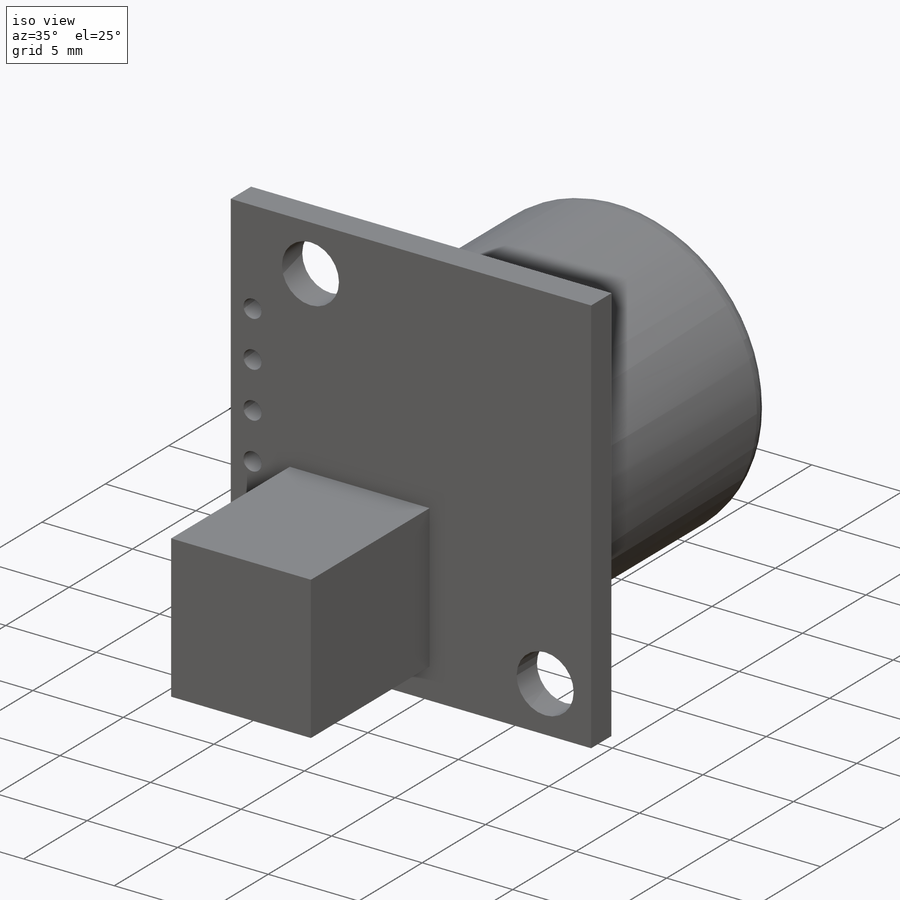
[diagram: iso view]
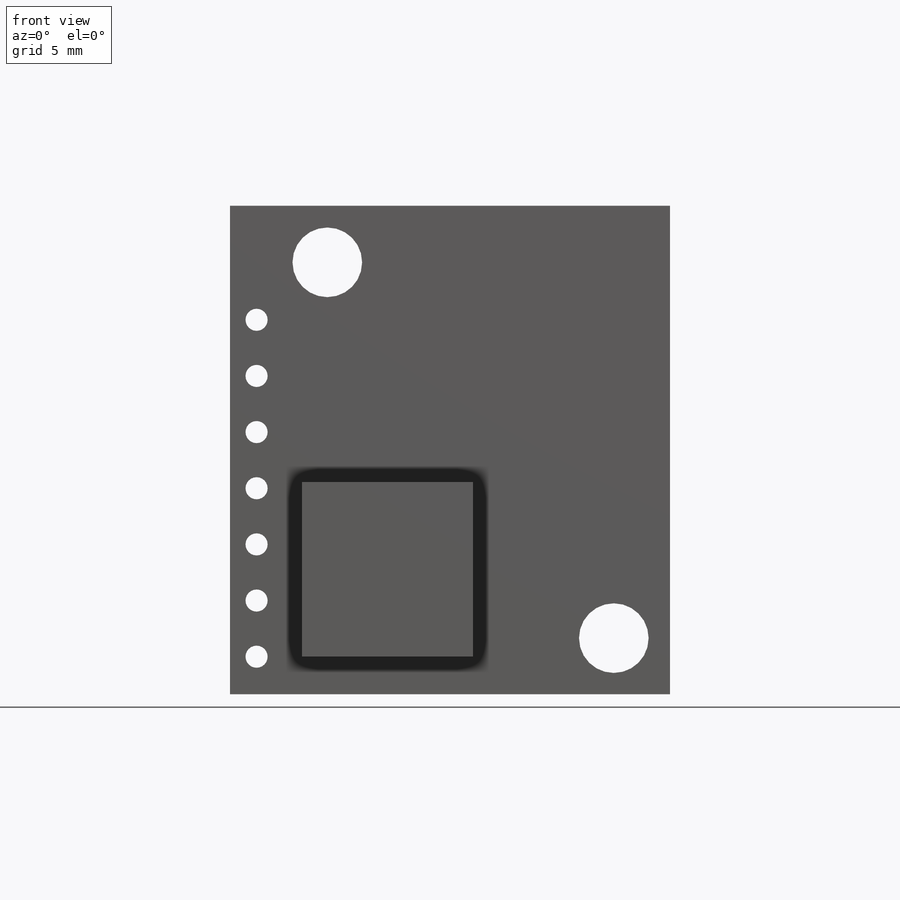
[diagram: front view]
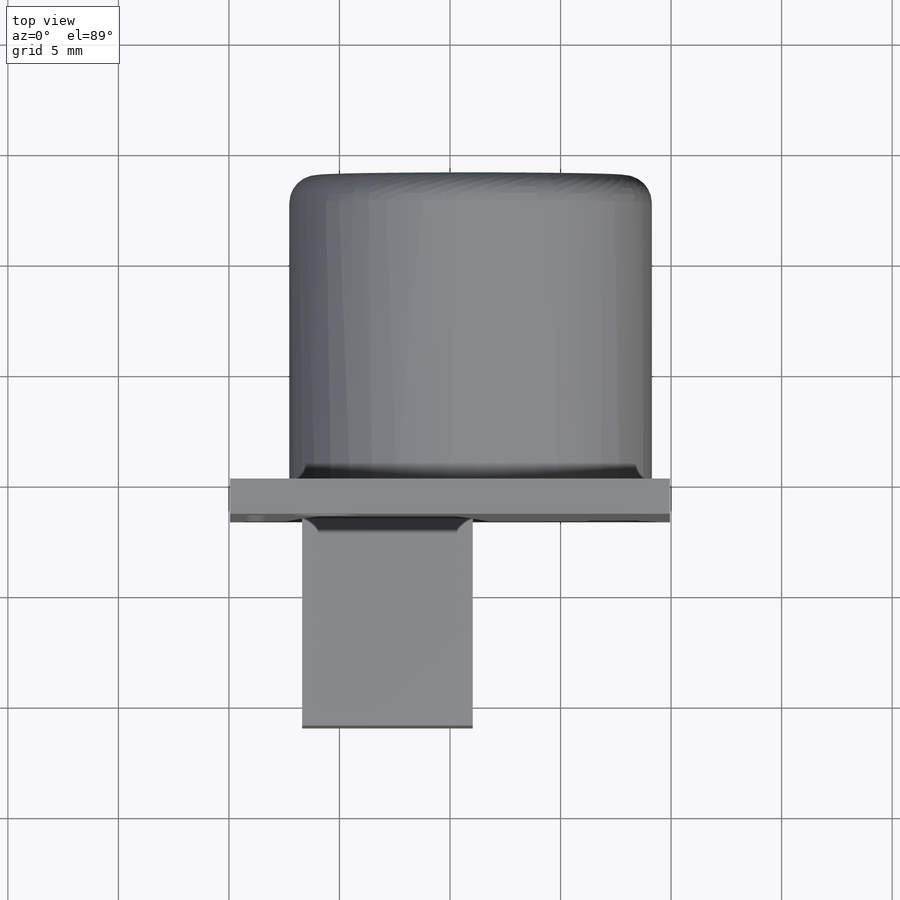
[diagram: top view]
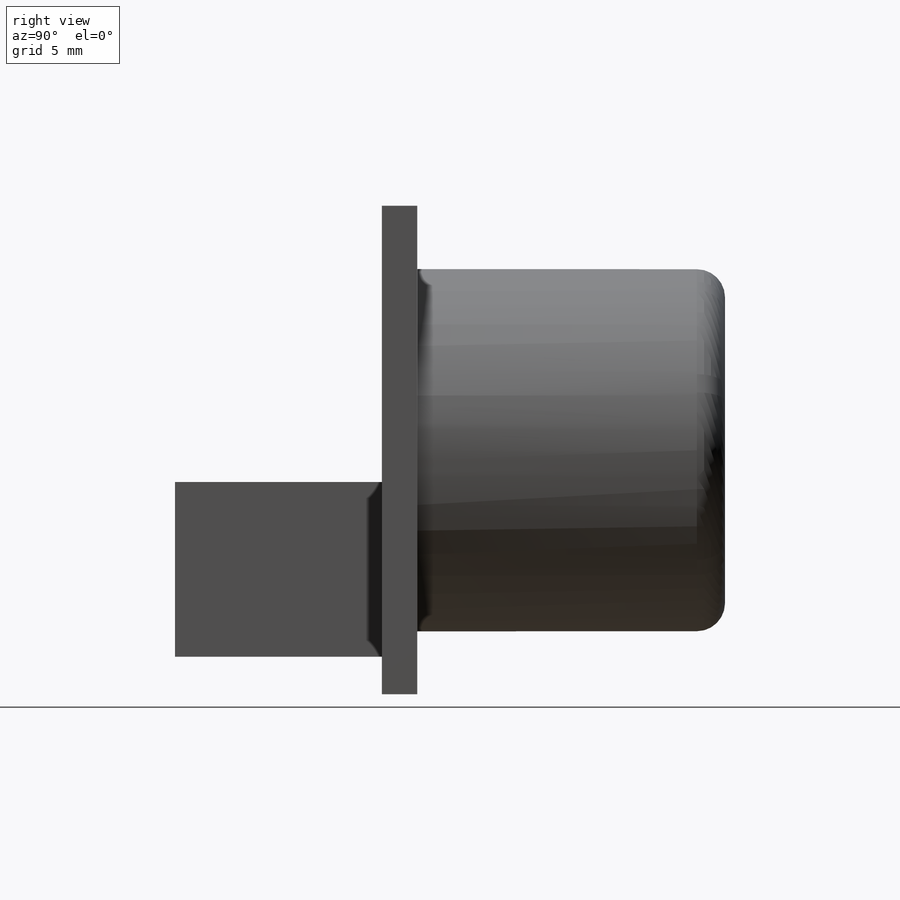
[diagram: right view]
SOLIDWORKS PART (.sldprt)
format: sldprt  version: not decoded by parser v0  size: 225,792 bytes
history: native  units: mm
features: sketch x3, extrude x3, material x1, fillet x1 (+11 scaffold rows collapsed)
feature tree (19):
  scaffold x11  (default folders/planes/origin — collapsed)
  material  "ABS"
  sketch  "Sketch1"  dims[c1.D7=3.1496mm c1.D10=1.0mm c1.D11=1.0mm c1.D1=22.1mm c1.D2=19.9mm c1.D3=12.6mm c1.D4=17.0mm c1.D5=2.54mm c1.D6=2.54mm c1.D8=1.7mm c1.D9=18.7mm c1.D12=0.81mm c1.D13=3.35mm c2.D12=0.81mm c2.D3=15.5mm c2.D11=7.0]
  extrude  "Boss-Extrude1"  Depth=1.6mm
  sketch  "Sketch2"  dims[D1=16.4mm]
  extrude  "Boss-Extrude2"  Depth=13.9192mm
  fillet  "Fillet2"  Radius=1.27mm
  sketch  "Sketch3"  dims[D1=12.5mm D2=7.72mm D3=1.7mm D4=8.92mm]
  extrude  "Boss-Extrude3"  Depth=9.36mm
decode coverage: 7 of 7 modeling features carry decoded parameters
note: suppression state not decoded; provenance and decode notes live in map.json
